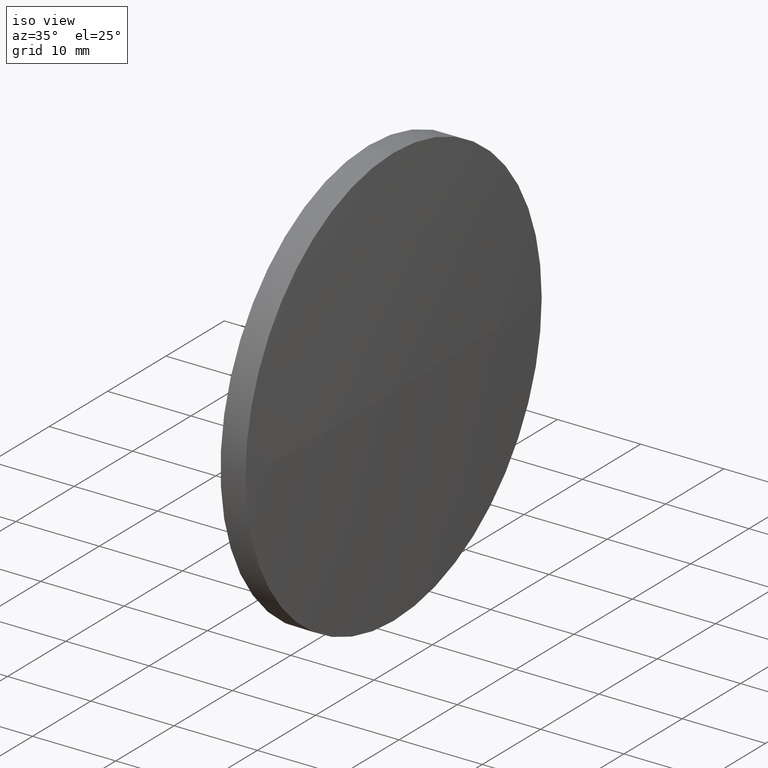
[diagram: clean part render]
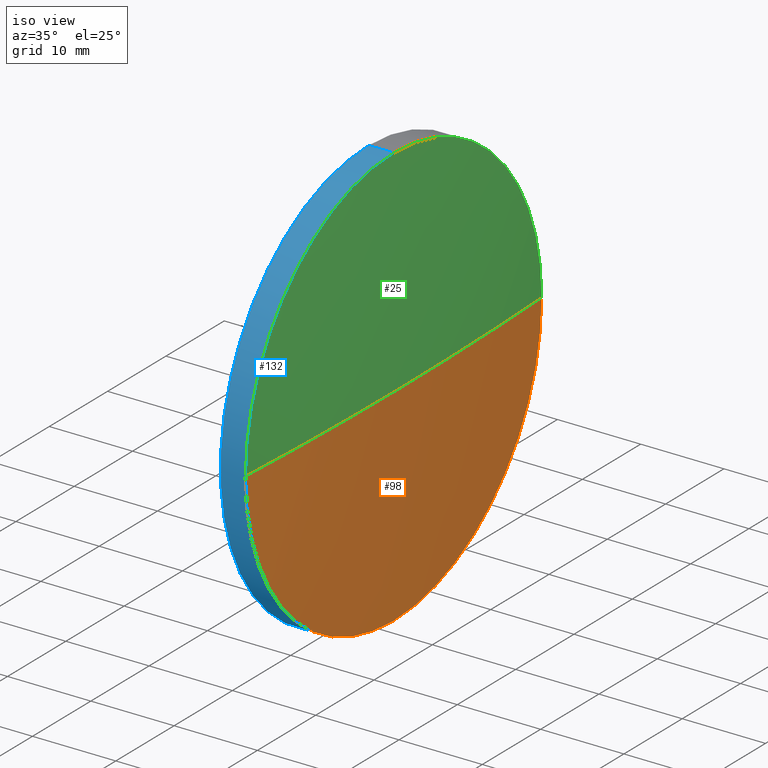
[diagram: same view with three faces highlighted in distinct colors, each labeled with its STEP entity id]
A machine part, iso view with three faces highlighted in distinct colors.
Their STEP definitions:

[orange] entity #98 — the highlighted spherical surface has radius 461.179 mm.
#1 = DIRECTION ( 'NONE',  ( -1.000000000000000000, -0.0000000000000000000, -0.0000000000000000000 ) ) ;
#2 = CIRCLE ( 'NONE', #182, 461.1785714285788900 ) ;
#3 = CIRCLE ( 'NONE', #133, 461.1785714285788900 ) ;
#7 = CARTESIAN_POINT ( 'NONE',  ( 235.0208200792423800, 130.4671098528243900, -25.40000000000000600 ) ) ;
#11 = ORIENTED_EDGE ( 'NONE', *, *, #180, .F. ) ;
#16 = CARTESIAN_POINT ( 'NONE',  ( 235.0208200792423800, 130.4671098528243900, 0.0000000000000000000 ) ) ;
#19 = DIRECTION ( 'NONE',  ( -0.0000000000000000000, 0.0000000000000000000, -1.000000000000000000 ) ) ;
#20 = EDGE_LOOP ( 'NONE', ( #11, #28, #24, #176 ) ) ;
#21 = CARTESIAN_POINT ( 'NONE',  ( -225.4577513493365200, 130.4671098528243900, 0.0000000000000000000 ) ) ;
#24 = ORIENTED_EDGE ( 'NONE', *, *, #66, .F. ) ;
#28 = ORIENTED_EDGE ( 'NONE', *, *, #51, .T. ) ;
#42 = SPHERICAL_SURFACE ( 'NONE', #159, 461.1785714285788900 ) ;
#43 = DIRECTION ( 'NONE',  ( 0.0000000000000000000, 0.0000000000000000000, 1.000000000000000000 ) ) ;
#51 = EDGE_CURVE ( 'NONE', #161, #172, #3, .T. ) ;
#53 = EDGE_CURVE ( 'NONE', #82, #183, #123, .T. ) ;
#58 = DIRECTION ( 'NONE',  ( 0.0000000000000000000, 0.0000000000000000000, 1.000000000000000000 ) ) ;
#61 = FACE_OUTER_BOUND ( 'NONE', #20, .T. ) ;
#63 = DIRECTION ( 'NONE',  ( 0.0000000000000000000, 1.000000000000000000, 0.0000000000000000000 ) ) ;
#66 = EDGE_CURVE ( 'NONE', #183, #172, #99, .T. ) ;
#75 = CARTESIAN_POINT ( 'NONE',  ( 235.7208200792423700, 130.4671098528244200, 0.0000000000000000000 ) ) ;
#77 = AXIS2_PLACEMENT_3D ( 'NONE', #163, #1, #58 ) ;
#82 = VERTEX_POINT ( 'NONE', #153 ) ;
#92 = DIRECTION ( 'NONE',  ( 1.000000000000000000, 0.0000000000000000000, 0.0000000000000000000 ) ) ;
#97 = AXIS2_PLACEMENT_3D ( 'NONE', #16, #137, #43 ) ;
#98 = ADVANCED_FACE ( 'NONE', ( #61 ), #42, .T. ) ;
#99 = CIRCLE ( 'NONE', #77, 25.40000000000000600 ) ;
#119 = DIRECTION ( 'NONE',  ( 0.0000000000000000000, 1.000000000000000000, 1.224646799147353200E-016 ) ) ;
#123 = CIRCLE ( 'NONE', #97, 25.40000000000000600 ) ;
#133 = AXIS2_PLACEMENT_3D ( 'NONE', #139, #136, #119 ) ;
#136 = DIRECTION ( 'NONE',  ( 0.0000000000000000000, 1.224646799147353200E-016, -1.000000000000000000 ) ) ;
#137 = DIRECTION ( 'NONE',  ( -1.000000000000000000, -0.0000000000000000000, -0.0000000000000000000 ) ) ;
#139 = CARTESIAN_POINT ( 'NONE',  ( -225.4577513493365200, 130.4671098528243900, 0.0000000000000000000 ) ) ;
#153 = CARTESIAN_POINT ( 'NONE',  ( 235.0208200792423800, 155.8671098528241700, 0.0000000000000000000 ) ) ;
#159 = AXIS2_PLACEMENT_3D ( 'NONE', #21, #19, #63 ) ;
#161 = VERTEX_POINT ( 'NONE', #75 ) ;
#163 = CARTESIAN_POINT ( 'NONE',  ( 235.0208200792423800, 130.4671098528243900, 0.0000000000000000000 ) ) ;
#166 = DIRECTION ( 'NONE',  ( -0.0000000000000000000, 0.0000000000000000000, 1.000000000000000000 ) ) ;
#172 = VERTEX_POINT ( 'NONE', #179 ) ;
#176 = ORIENTED_EDGE ( 'NONE', *, *, #53, .F. ) ;
#177 = CARTESIAN_POINT ( 'NONE',  ( -225.4577513493365200, 130.4671098528243900, 0.0000000000000000000 ) ) ;
#179 = CARTESIAN_POINT ( 'NONE',  ( 235.0208200792423800, 105.0671098528246100, -3.110602869834250800E-015 ) ) ;
#180 = EDGE_CURVE ( 'NONE', #161, #82, #2, .T. ) ;
#182 = AXIS2_PLACEMENT_3D ( 'NONE', #177, #166, #92 ) ;
#183 = VERTEX_POINT ( 'NONE', #7 ) ;

[blue] entity #132 — the highlighted cylindrical surface (partial cylindrical patch) has radius 25.4 mm, axis along (-1, -0, -0).
#1 = DIRECTION ( 'NONE',  ( -1.000000000000000000, -0.0000000000000000000, -0.0000000000000000000 ) ) ;
#7 = CARTESIAN_POINT ( 'NONE',  ( 235.0208200792423800, 130.4671098528243900, -25.40000000000000600 ) ) ;
#10 = VECTOR ( 'NONE', #94, 1000.000000000000000 ) ;
#18 = VERTEX_POINT ( 'NONE', #149 ) ;
#35 = FACE_OUTER_BOUND ( 'NONE', #131, .T. ) ;
#36 = LINE ( 'NONE', #93, #39 ) ;
#39 = VECTOR ( 'NONE', #126, 1000.000000000000000 ) ;
#40 = AXIS2_PLACEMENT_3D ( 'NONE', #104, #60, #157 ) ;
#45 = LINE ( 'NONE', #165, #10 ) ;
#46 = DIRECTION ( 'NONE',  ( 0.0000000000000000000, 0.0000000000000000000, 1.000000000000000000 ) ) ;
#54 = ORIENTED_EDGE ( 'NONE', *, *, #66, .T. ) ;
#58 = DIRECTION ( 'NONE',  ( 0.0000000000000000000, 0.0000000000000000000, 1.000000000000000000 ) ) ;
#60 = DIRECTION ( 'NONE',  ( -1.000000000000000000, -0.0000000000000000000, -0.0000000000000000000 ) ) ;
#62 = DIRECTION ( 'NONE',  ( -1.000000000000000000, -0.0000000000000000000, -0.0000000000000000000 ) ) ;
#66 = EDGE_CURVE ( 'NONE', #183, #172, #99, .T. ) ;
#68 = CIRCLE ( 'NONE', #40, 25.40000000000000600 ) ;
#73 = CIRCLE ( 'NONE', #115, 25.40000000000000600 ) ;
#74 = CARTESIAN_POINT ( 'NONE',  ( 235.0208200792423800, 130.4671098528243900, 0.0000000000000000000 ) ) ;
#77 = AXIS2_PLACEMENT_3D ( 'NONE', #163, #1, #58 ) ;
#78 = EDGE_CURVE ( 'NONE', #91, #18, #68, .T. ) ;
#79 = ORIENTED_EDGE ( 'NONE', *, *, #185, .T. ) ;
#84 = CYLINDRICAL_SURFACE ( 'NONE', #105, 25.40000000000000600 ) ;
#85 = VERTEX_POINT ( 'NONE', #124 ) ;
#86 = CARTESIAN_POINT ( 'NONE',  ( 232.0208200792423800, 130.4671098528243900, -25.40000000000000600 ) ) ;
#91 = VERTEX_POINT ( 'NONE', #86 ) ;
#93 = CARTESIAN_POINT ( 'NONE',  ( 220.3307464569769000, 130.4671098528243900, 25.40000000000000600 ) ) ;
#94 = DIRECTION ( 'NONE',  ( -1.000000000000000000, -0.0000000000000000000, -0.0000000000000000000 ) ) ;
#99 = CIRCLE ( 'NONE', #77, 25.40000000000000600 ) ;
#100 = EDGE_CURVE ( 'NONE', #85, #18, #36, .T. ) ;
#104 = CARTESIAN_POINT ( 'NONE',  ( 232.0208200792423800, 130.4671098528243900, 0.0000000000000000000 ) ) ;
#105 = AXIS2_PLACEMENT_3D ( 'NONE', #181, #62, #46 ) ;
#109 = DIRECTION ( 'NONE',  ( -1.000000000000000000, -0.0000000000000000000, -0.0000000000000000000 ) ) ;
#115 = AXIS2_PLACEMENT_3D ( 'NONE', #74, #109, #146 ) ;
#120 = EDGE_CURVE ( 'NONE', #183, #91, #45, .T. ) ;
#124 = CARTESIAN_POINT ( 'NONE',  ( 235.0208200792423800, 130.4671098528243900, 25.40000000000000600 ) ) ;
#126 = DIRECTION ( 'NONE',  ( -1.000000000000000000, -0.0000000000000000000, -0.0000000000000000000 ) ) ;
#131 = EDGE_LOOP ( 'NONE', ( #141, #54, #79, #135, #158 ) ) ;
#132 = ADVANCED_FACE ( 'NONE', ( #35 ), #84, .T. ) ;
#135 = ORIENTED_EDGE ( 'NONE', *, *, #100, .T. ) ;
#141 = ORIENTED_EDGE ( 'NONE', *, *, #120, .F. ) ;
#146 = DIRECTION ( 'NONE',  ( 0.0000000000000000000, 0.0000000000000000000, 1.000000000000000000 ) ) ;
#149 = CARTESIAN_POINT ( 'NONE',  ( 232.0208200792423800, 130.4671098528243900, 25.40000000000000600 ) ) ;
#157 = DIRECTION ( 'NONE',  ( 0.0000000000000000000, 0.0000000000000000000, 1.000000000000000000 ) ) ;
#158 = ORIENTED_EDGE ( 'NONE', *, *, #78, .F. ) ;
#163 = CARTESIAN_POINT ( 'NONE',  ( 235.0208200792423800, 130.4671098528243900, 0.0000000000000000000 ) ) ;
#165 = CARTESIAN_POINT ( 'NONE',  ( 220.3307464569769000, 130.4671098528243900, -25.40000000000000600 ) ) ;
#172 = VERTEX_POINT ( 'NONE', #179 ) ;
#179 = CARTESIAN_POINT ( 'NONE',  ( 235.0208200792423800, 105.0671098528246100, -3.110602869834250800E-015 ) ) ;
#181 = CARTESIAN_POINT ( 'NONE',  ( 220.3307464569769000, 130.4671098528243900, 0.0000000000000000000 ) ) ;
#183 = VERTEX_POINT ( 'NONE', #7 ) ;
#185 = EDGE_CURVE ( 'NONE', #172, #85, #73, .T. ) ;

[green] entity #25 — the highlighted spherical surface has radius 461.179 mm.
#2 = CIRCLE ( 'NONE', #182, 461.1785714285788900 ) ;
#3 = CIRCLE ( 'NONE', #133, 461.1785714285788900 ) ;
#8 = ORIENTED_EDGE ( 'NONE', *, *, #185, .F. ) ;
#25 = ADVANCED_FACE ( 'NONE', ( #170 ), #81, .T. ) ;
#26 = CARTESIAN_POINT ( 'NONE',  ( -225.4577513493365200, 130.4671098528243900, 0.0000000000000000000 ) ) ;
#32 = CARTESIAN_POINT ( 'NONE',  ( 235.0208200792423800, 130.4671098528243900, 0.0000000000000000000 ) ) ;
#41 = ORIENTED_EDGE ( 'NONE', *, *, #51, .F. ) ;
#51 = EDGE_CURVE ( 'NONE', #161, #172, #3, .T. ) ;
#56 = ORIENTED_EDGE ( 'NONE', *, *, #112, .F. ) ;
#59 = DIRECTION ( 'NONE',  ( 0.0000000000000000000, 1.000000000000000000, 0.0000000000000000000 ) ) ;
#73 = CIRCLE ( 'NONE', #115, 25.40000000000000600 ) ;
#74 = CARTESIAN_POINT ( 'NONE',  ( 235.0208200792423800, 130.4671098528243900, 0.0000000000000000000 ) ) ;
#75 = CARTESIAN_POINT ( 'NONE',  ( 235.7208200792423700, 130.4671098528244200, 0.0000000000000000000 ) ) ;
#81 = SPHERICAL_SURFACE ( 'NONE', #114, 461.1785714285788900 ) ;
#82 = VERTEX_POINT ( 'NONE', #153 ) ;
#85 = VERTEX_POINT ( 'NONE', #124 ) ;
#92 = DIRECTION ( 'NONE',  ( 1.000000000000000000, 0.0000000000000000000, 0.0000000000000000000 ) ) ;
#95 = AXIS2_PLACEMENT_3D ( 'NONE', #32, #125, #111 ) ;
#109 = DIRECTION ( 'NONE',  ( -1.000000000000000000, -0.0000000000000000000, -0.0000000000000000000 ) ) ;
#111 = DIRECTION ( 'NONE',  ( 0.0000000000000000000, 0.0000000000000000000, 1.000000000000000000 ) ) ;
#112 = EDGE_CURVE ( 'NONE', #85, #82, #134, .T. ) ;
#114 = AXIS2_PLACEMENT_3D ( 'NONE', #26, #162, #59 ) ;
#115 = AXIS2_PLACEMENT_3D ( 'NONE', #74, #109, #146 ) ;
#118 = ORIENTED_EDGE ( 'NONE', *, *, #180, .T. ) ;
#119 = DIRECTION ( 'NONE',  ( 0.0000000000000000000, 1.000000000000000000, 1.224646799147353200E-016 ) ) ;
#124 = CARTESIAN_POINT ( 'NONE',  ( 235.0208200792423800, 130.4671098528243900, 25.40000000000000600 ) ) ;
#125 = DIRECTION ( 'NONE',  ( -1.000000000000000000, -0.0000000000000000000, -0.0000000000000000000 ) ) ;
#129 = EDGE_LOOP ( 'NONE', ( #41, #118, #56, #8 ) ) ;
#133 = AXIS2_PLACEMENT_3D ( 'NONE', #139, #136, #119 ) ;
#134 = CIRCLE ( 'NONE', #95, 25.40000000000000600 ) ;
#136 = DIRECTION ( 'NONE',  ( 0.0000000000000000000, 1.224646799147353200E-016, -1.000000000000000000 ) ) ;
#139 = CARTESIAN_POINT ( 'NONE',  ( -225.4577513493365200, 130.4671098528243900, 0.0000000000000000000 ) ) ;
#146 = DIRECTION ( 'NONE',  ( 0.0000000000000000000, 0.0000000000000000000, 1.000000000000000000 ) ) ;
#153 = CARTESIAN_POINT ( 'NONE',  ( 235.0208200792423800, 155.8671098528241700, 0.0000000000000000000 ) ) ;
#161 = VERTEX_POINT ( 'NONE', #75 ) ;
#162 = DIRECTION ( 'NONE',  ( -0.0000000000000000000, 0.0000000000000000000, -1.000000000000000000 ) ) ;
#166 = DIRECTION ( 'NONE',  ( -0.0000000000000000000, 0.0000000000000000000, 1.000000000000000000 ) ) ;
#170 = FACE_OUTER_BOUND ( 'NONE', #129, .T. ) ;
#172 = VERTEX_POINT ( 'NONE', #179 ) ;
#177 = CARTESIAN_POINT ( 'NONE',  ( -225.4577513493365200, 130.4671098528243900, 0.0000000000000000000 ) ) ;
#179 = CARTESIAN_POINT ( 'NONE',  ( 235.0208200792423800, 105.0671098528246100, -3.110602869834250800E-015 ) ) ;
#180 = EDGE_CURVE ( 'NONE', #161, #82, #2, .T. ) ;
#182 = AXIS2_PLACEMENT_3D ( 'NONE', #177, #166, #92 ) ;
#185 = EDGE_CURVE ( 'NONE', #172, #85, #73, .T. ) ;